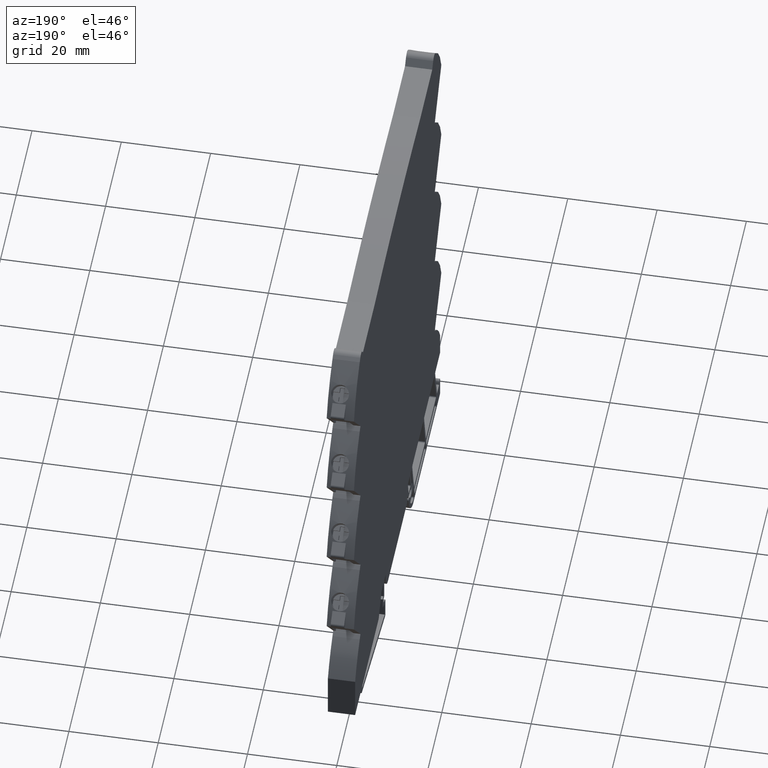
[diagram: clean part render]
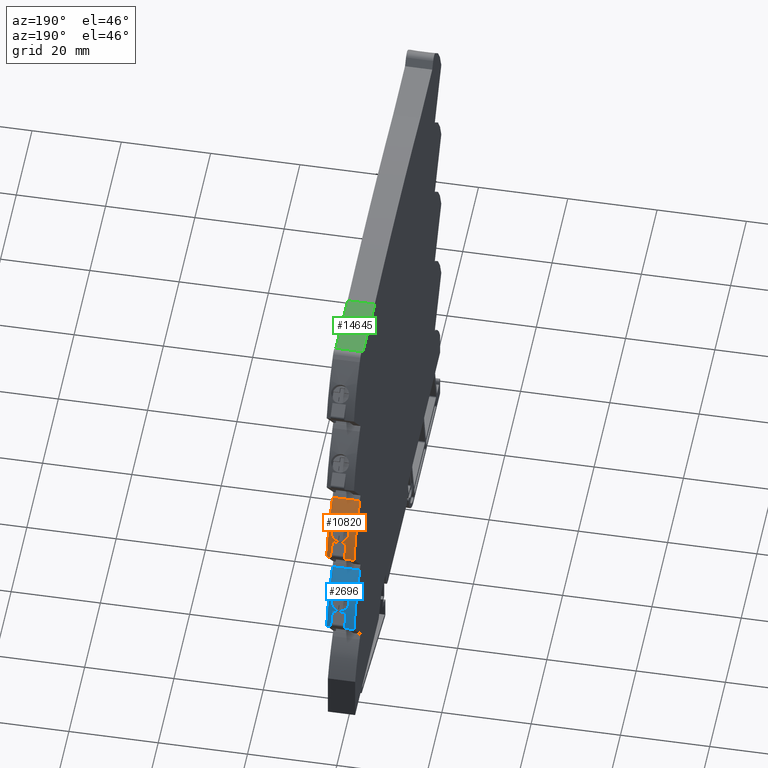
[diagram: same view with three faces highlighted in distinct colors, each labeled with its STEP entity id]
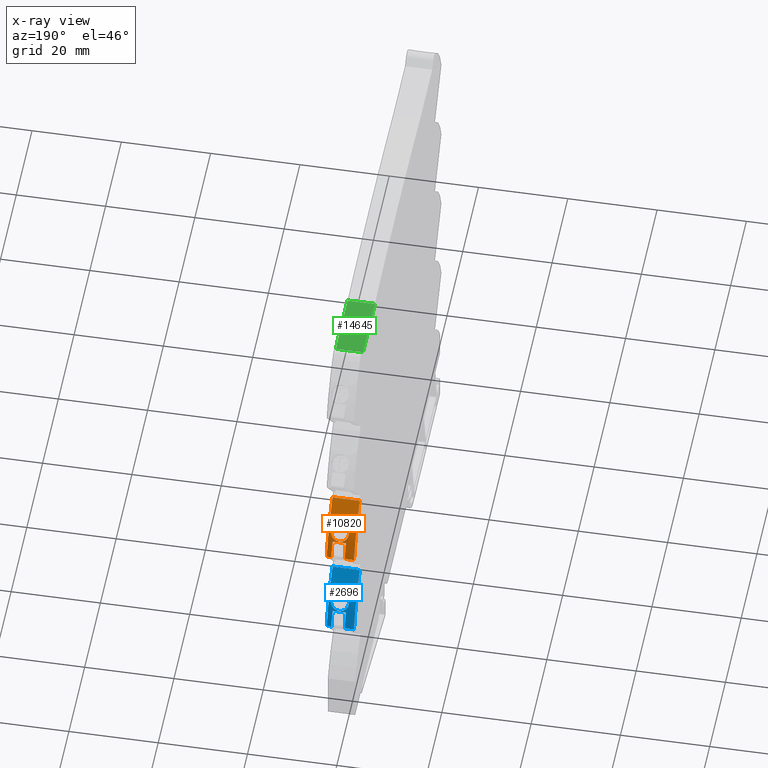
[diagram: x-ray of the same camera — body ghosted, the three highlighted faces saturated]
A machine part, auxiliary view with three faces highlighted in distinct colors.
The next image is the same camera in x-ray (body ghosted, the three faces saturated) — at least one of them is partly hidden behind the body in this view.
Their STEP definitions:

[orange] entity #10820 — the highlighted cylindrical surface (partial cylindrical patch) has radius 23.3063 mm, axis along (1, 0, 0).
#80 = CARTESIAN_POINT ( 'NONE',  ( 0.09803723854930621040, 2.082328412321664768, -1.908735431680129269 ) ) ;
#156 = CARTESIAN_POINT ( 'NONE',  ( 0.01968503937007873988, 2.041681786484861760, -1.849130077443395415 ) ) ;
#248 = EDGE_CURVE ( 'NONE', #2458, #2532, #4915, .T. ) ;
#299 = CARTESIAN_POINT ( 'NONE',  ( 0.09621604297857187793, 2.076767297206822072, -1.899955916970420322 ) ) ;
#388 = CARTESIAN_POINT ( 'NONE',  ( 0.03039502177605702890, 2.042020614591699701, -1.849586628273309996 ) ) ;
#572 = DIRECTION ( 'NONE',  ( -1.000000000000000000, -0.000000000000000000, -0.000000000000000000 ) ) ;
#606 = EDGE_CURVE ( 'NONE', #2914, #5800, #8027, .T. ) ;
#730 = CARTESIAN_POINT ( 'NONE',  ( -0.04878404843116903450, 2.108387055917562147, -1.953124501534956980 ) ) ;
#875 = AXIS2_PLACEMENT_3D ( 'NONE', #4143, #10272, #5668 ) ;
#891 = CARTESIAN_POINT ( 'NONE',  ( -0.02068331536314960487, 2.048330768449505346, -1.858212275688087223 ) ) ;
#953 = CARTESIAN_POINT ( 'NONE',  ( -0.05499901890064513854, 2.101196107611918773, -1.940290379915435626 ) ) ;
#987 = CARTESIAN_POINT ( 'NONE',  ( -1.239618836456299888, 2.185039370078739829, -2.137650433880518008 ) ) ;
#1267 = EDGE_CURVE ( 'NONE', #2532, #2458, #2503, .T. ) ;
#1311 = CARTESIAN_POINT ( 'NONE',  ( 0.1200787401574804764, 1.304396714720946315, -2.395341459822921237 ) ) ;
#1320 = CARTESIAN_POINT ( 'NONE',  ( -1.239618836456299888, 2.130467922716013707, -1.995913730930141128 ) ) ;
#1460 = ORIENTED_EDGE ( 'NONE', *, *, #12319, .T. ) ;
#1462 = CARTESIAN_POINT ( 'NONE',  ( 0.04074549341334526148, 2.043322983108333712, -1.851351272680382687 ) ) ;
#1484 = DIRECTION ( 'NONE',  ( 0.000000000000000000, 0.000000000000000000, -1.000000000000000000 ) ) ;
#1894 = CARTESIAN_POINT ( 'NONE',  ( -0.01609483467254451544, 2.046798652361732085, -1.856101189033609211 ) ) ;
#1940 = CARTESIAN_POINT ( 'NONE',  ( -1.239618836456299888, 1.894199848361314498, -1.692441456383686482 ) ) ;
#1960 = CARTESIAN_POINT ( 'NONE',  ( 0.01433197515524629352, 2.041681786484861760, -1.849130077443395415 ) ) ;
#2022 = FACE_BOUND ( 'NONE', #7810, .T. ) ;
#2036 = CARTESIAN_POINT ( 'NONE',  ( -0.001314004468406982816, 2.126836920362605188, -1.988488175252575152 ) ) ;
#2116 = CARTESIAN_POINT ( 'NONE',  ( -0.04010950442700071672, 2.114667762814291141, -1.964745825853058125 ) ) ;
#2248 = DIRECTION ( 'NONE',  ( 0.000000000000000000, -5.359070332273344552E-15, -1.000000000000000000 ) ) ;
#2283 = VERTEX_POINT ( 'NONE', #4909 ) ;
#2458 = VERTEX_POINT ( 'NONE', #10327 ) ;
#2471 = CARTESIAN_POINT ( 'NONE',  ( 0.09847349066399949113, 2.085160310300060882, -1.913291256853001387 ) ) ;
#2503 = B_SPLINE_CURVE_WITH_KNOTS ( 'NONE', 3,
 ( #7988, #1960, #12483, #12552, #5732, #1894, #891, #6824, #9138, #4358, #4427, #10474, #6601, #5592, #11545, #3262, #9071, #12706, #953, #9302, #730, #3189, #2116, #11607, #6752, #7901, #2036, #12775, #8062, #5654 ),
 .UNSPECIFIED., .F., .F.,
 ( 4, 2, 2, 2, 2, 2, 2, 2, 2, 2, 2, 2, 2, 2, 4 ),
 ( 1.084202172485504434E-19, 0.0004020662412857308929, 0.0008041324825714616775, 0.001206198723857192408, 0.001608264965142923355, 0.002412397447714375708, 0.002814463689000096247, 0.003216529930285816786, 0.003618596171571538192, 0.004020662412857259164, 0.004422728654142980137, 0.004824794895428700242, 0.005628927378000135248, 0.006030993619285854486, 0.006433059860571573724 ),
 .UNSPECIFIED. ) ;
#2532 = VERTEX_POINT ( 'NONE', #5522 ) ;
#2558 = CARTESIAN_POINT ( 'NONE',  ( 0.08873136419199574576, 2.065873749955929650, -1.883375658276704945 ) ) ;
#2634 = CARTESIAN_POINT ( 'NONE',  ( 0.08000785079911081066, 2.058443650964702609, -1.872498617877029536 ) ) ;
#2643 = CARTESIAN_POINT ( 'NONE',  ( 0.07874015748031501505, 2.130467922716013707, -1.995913730930140906 ) ) ;
#2799 = AXIS2_PLACEMENT_3D ( 'NONE', #7972, #3180, #3337 ) ;
#2914 = VERTEX_POINT ( 'NONE', #4868 ) ;
#3101 = LINE ( 'NONE', #1940, #6230 ) ;
#3139 = CARTESIAN_POINT ( 'NONE',  ( -0.1200787401574802127, 2.185039370078740273, -2.137650433880518008 ) ) ;
#3180 = DIRECTION ( 'NONE',  ( 1.000000000000000000, 0.000000000000000000, 0.000000000000000000 ) ) ;
#3189 = CARTESIAN_POINT ( 'NONE',  ( -0.04326723449944583355, 2.112675830390298604, -1.961013037879710819 ) ) ;
#3242 = CARTESIAN_POINT ( 'NONE',  ( 0.04060016175931423915, 2.126848314559866449, -1.988511224036471514 ) ) ;
#3262 = CARTESIAN_POINT ( 'NONE',  ( -0.05899705133367526971, 2.090682864560671650, -1.922352718444066300 ) ) ;
#3337 = DIRECTION ( 'NONE',  ( 0.000000000000000000, 0.000000000000000000, -1.000000000000000000 ) ) ;
#3401 = CARTESIAN_POINT ( 'NONE',  ( 0.07945492284593101695, 2.114679479272712381, -1.964768238954259338 ) ) ;
#3700 = DIRECTION ( 'NONE',  ( 0.000000000000000000, -3.572713554848895842E-15, -1.000000000000000000 ) ) ;
#3865 = CARTESIAN_POINT ( 'NONE',  ( 0.02503806109594255980, 2.041681786484862648, -1.849130077443392972 ) ) ;
#4033 = AXIS2_PLACEMENT_3D ( 'NONE', #14171, #5813, #2248 ) ;
#4143 = CARTESIAN_POINT ( 'NONE',  ( -0.1200787401574803376, 1.304396714720946315, -2.395341459822921237 ) ) ;
#4323 = CIRCLE ( 'NONE', #875, 0.9175707881612592542 ) ;
#4326 = CIRCLE ( 'NONE', #12962, 0.9175707881612592542 ) ;
#4354 = CARTESIAN_POINT ( 'NONE',  ( -1.239618836456299888, 2.185039370078740273, -2.137650433880518008 ) ) ;
#4358 = CARTESIAN_POINT ( 'NONE',  ( -0.04417320033189122558, 2.060616177129368065, -1.875603120541033286 ) ) ;
#4427 = CARTESIAN_POINT ( 'NONE',  ( -0.04985890177432774489, 2.065838204291715829, -1.883246901046085719 ) ) ;
#4569 = CARTESIAN_POINT ( 'NONE',  ( 0.04570859317173747716, 2.126076317427806117, -1.986949804009208398 ) ) ;
#4681 = EDGE_CURVE ( 'NONE', #5890, #5959, #4323, .T. ) ;
#4751 = VECTOR ( 'NONE', #10457, 39.37007874015748143 ) ;
#4802 = CARTESIAN_POINT ( 'NONE',  ( 0.07273040664023681934, 2.053963362698192352, -1.866095524861859811 ) ) ;
#4868 = CARTESIAN_POINT ( 'NONE',  ( 0.1200787401574804764, 2.185039370078739829, -2.137650433880518008 ) ) ;
#4909 = CARTESIAN_POINT ( 'NONE',  ( 0.1200787401574804764, 1.894199848361301619, -1.692441456383675380 ) ) ;
#4915 = B_SPLINE_CURVE_WITH_KNOTS ( 'NONE', 3,
 ( #15161, #13833, #5711, #3242, #4569, #9287, #13999, #3401, #8118, #9525, #5022, #10990, #10897, #6032, #6170, #2471, #80, #299, #7402, #9752, #2558, #9826, #2634, #4802, #14377, #7333, #12060, #9665, #1462, #388, #3865, #156 ),
 .UNSPECIFIED., .F., .F.,
 ( 4, 2, 2, 2, 2, 2, 2, 2, 2, 2, 2, 2, 2, 2, 2, 4 ),
 ( 1.084202172485504434E-18, 0.0004019755251540714871, 0.0008039510503081418900, 0.001607902100616291369, 0.002009877625770368874, 0.002411853150924446812, 0.002813828676078524750, 0.003215804201232602688, 0.003617779726386681494, 0.004019755251540759432, 0.004421730776694837370, 0.004823706301848915308, 0.005225681827002994113, 0.005627657352157072052, 0.006029632877311150857, 0.006431608402465228795 ),
 .UNSPECIFIED. ) ;
#5022 = CARTESIAN_POINT ( 'NONE',  ( 0.09055446451088657034, 2.106039175172224720, -1.948877750296356126 ) ) ;
#5029 = ORIENTED_EDGE ( 'NONE', *, *, #8624, .T. ) ;
#5522 = CARTESIAN_POINT ( 'NONE',  ( 0.01968503937007873988, 2.041681786484861760, -1.849130077443395415 ) ) ;
#5592 = CARTESIAN_POINT ( 'NONE',  ( -0.05868107894269113112, 2.082387902055983897, -1.908830303976847720 ) ) ;
#5654 = CARTESIAN_POINT ( 'NONE',  ( 0.01968503937007875029, 2.128125888827889778, -1.991105886163244687 ) ) ;
#5668 = DIRECTION ( 'NONE',  ( 0.000000000000000000, 0.000000000000000000, -1.000000000000000000 ) ) ;
#5688 = DIRECTION ( 'NONE',  ( -1.000000000000000000, -0.000000000000000000, -0.000000000000000000 ) ) ;
#5711 = CARTESIAN_POINT ( 'NONE',  ( 0.03029161267056218812, 2.127865896563615689, -1.990574883407548068 ) ) ;
#5732 = CARTESIAN_POINT ( 'NONE',  ( -0.006392439550037033041, 2.044282015018290988, -1.852653290560283716 ) ) ;
#5800 = VERTEX_POINT ( 'NONE', #11968 ) ;
#5813 = DIRECTION ( 'NONE',  ( -1.000000000000000000, -0.000000000000000000, -0.000000000000000000 ) ) ;
#5890 = VERTEX_POINT ( 'NONE', #3139 ) ;
#5959 = VERTEX_POINT ( 'NONE', #11562 ) ;
#6032 = CARTESIAN_POINT ( 'NONE',  ( 0.09784099568881188258, 2.093361755794751922, -1.926836076903554851 ) ) ;
#6076 = CARTESIAN_POINT ( 'NONE',  ( -0.03937007874015750752, 2.130467922716013707, -1.995913730930141350 ) ) ;
#6170 = CARTESIAN_POINT ( 'NONE',  ( 0.09836824211244667160, 2.090671833921745826, -1.922334454282055294 ) ) ;
#6230 = VECTOR ( 'NONE', #11366, 39.37007874015748143 ) ;
#6601 = CARTESIAN_POINT ( 'NONE',  ( -0.05686313374939366838, 2.076803025439112105, -1.900011384523212277 ) ) ;
#6612 = ORIENTED_EDGE ( 'NONE', *, *, #9470, .T. ) ;
#6752 = CARTESIAN_POINT ( 'NONE',  ( -0.02082410467820915850, 2.123071772988719630, -1.980941354538108046 ) ) ;
#6824 = CARTESIAN_POINT ( 'NONE',  ( -0.02933792581451650019, 2.051919738085116407, -1.863218385443649039 ) ) ;
#6826 = ORIENTED_EDGE ( 'NONE', *, *, #248, .T. ) ;
#6882 = CYLINDRICAL_SURFACE ( 'NONE', #2799, 0.9175707881612592542 ) ;
#7270 = VERTEX_POINT ( 'NONE', #2643 ) ;
#7333 = CARTESIAN_POINT ( 'NONE',  ( 0.06015519260634843990, 2.048369262060721230, -1.858265703633345423 ) ) ;
#7402 = CARTESIAN_POINT ( 'NONE',  ( 0.09483616691424173739, 2.074009374020293617, -1.895684391636092148 ) ) ;
#7730 = VERTEX_POINT ( 'NONE', #6076 ) ;
#7735 = CARTESIAN_POINT ( 'NONE',  ( -0.03937007874015751446, 2.185039370078740273, -2.137650433880518008 ) ) ;
#7810 = EDGE_LOOP ( 'NONE', ( #11548, #6826 ) ) ;
#7901 = CARTESIAN_POINT ( 'NONE',  ( -0.006306735061313822888, 2.126083037682081400, -1.986963234771416120 ) ) ;
#7972 = CARTESIAN_POINT ( 'NONE',  ( -1.239618836456299888, 1.304396714720946315, -2.395341459822921237 ) ) ;
#7988 = CARTESIAN_POINT ( 'NONE',  ( 0.01968503937007873988, 2.041681786484861760, -1.849130077443395415 ) ) ;
#8027 = LINE ( 'NONE', #987, #8193 ) ;
#8062 = CARTESIAN_POINT ( 'NONE',  ( 0.01432697834123192182, 2.128125888827890222, -1.991105886163245353 ) ) ;
#8118 = CARTESIAN_POINT ( 'NONE',  ( 0.08266488005329700184, 2.112659675907661239, -1.960982545038683078 ) ) ;
#8193 = VECTOR ( 'NONE', #5688, 39.37007874015748143 ) ;
#8261 = ORIENTED_EDGE ( 'NONE', *, *, #4681, .T. ) ;
#8424 = EDGE_LOOP ( 'NONE', ( #6612, #10219, #8261, #5029, #15251, #14084, #1460, #11037 ) ) ;
#8580 = VERTEX_POINT ( 'NONE', #7735 ) ;
#8624 = EDGE_CURVE ( 'NONE', #5959, #2283, #3101, .T. ) ;
#8697 = CIRCLE ( 'NONE', #13927, 0.9175707881612592542 ) ;
#9071 = CARTESIAN_POINT ( 'NONE',  ( -0.05845379507781205131, 2.093426370282773341, -1.926945012485391073 ) ) ;
#9138 = CARTESIAN_POINT ( 'NONE',  ( -0.03337323827959006589, 2.053973334767973835, -1.866109980878949193 ) ) ;
#9287 = CARTESIAN_POINT ( 'NONE',  ( 0.06012073970926233579, 2.123087263754322773, -1.980972316143180256 ) ) ;
#9302 = CARTESIAN_POINT ( 'NONE',  ( -0.05115803216410425708, 2.106069513036965990, -1.948931914364321116 ) ) ;
#9359 = EDGE_CURVE ( 'NONE', #8580, #5890, #14726, .T. ) ;
#9470 = EDGE_CURVE ( 'NONE', #7730, #8580, #10713, .T. ) ;
#9525 = CARTESIAN_POINT ( 'NONE',  ( 0.08821984930602450037, 2.108330598236671349, -1.953021448728935905 ) ) ;
#9665 = CARTESIAN_POINT ( 'NONE',  ( 0.04576683244414975205, 2.044282217774685773, -1.852653534779491684 ) ) ;
#9752 = CARTESIAN_POINT ( 'NONE',  ( 0.09109468084244506936, 2.068553959622045024, -1.887380303622928190 ) ) ;
#9826 = CARTESIAN_POINT ( 'NONE',  ( 0.08319703965298450021, 2.060833785373574756, -1.875957964430942093 ) ) ;
#10066 = DIRECTION ( 'NONE',  ( 1.000000000000000000, 0.000000000000000000, 0.000000000000000000 ) ) ;
#10069 = EDGE_CURVE ( 'NONE', #2283, #2914, #8697, .T. ) ;
#10219 = ORIENTED_EDGE ( 'NONE', *, *, #9359, .T. ) ;
#10272 = DIRECTION ( 'NONE',  ( 1.000000000000000000, 0.000000000000000000, 0.000000000000000000 ) ) ;
#10327 = CARTESIAN_POINT ( 'NONE',  ( 0.01968503937007875029, 2.128125888827889778, -1.991105886163244687 ) ) ;
#10457 = DIRECTION ( 'NONE',  ( -1.000000000000000000, -0.000000000000000000, -0.000000000000000000 ) ) ;
#10474 = CARTESIAN_POINT ( 'NONE',  ( -0.05545066862829075433, 2.073984599342777901, -1.895646456745445407 ) ) ;
#10713 = CIRCLE ( 'NONE', #4033, 0.9175707881612592542 ) ;
#10820 = ADVANCED_FACE ( 'NONE', ( #2022, #12472 ), #6882, .T. ) ;
#10897 = CARTESIAN_POINT ( 'NONE',  ( 0.09585132541870750034, 2.098615159202446456, -1.935797999085636656 ) ) ;
#10990 = CARTESIAN_POINT ( 'NONE',  ( 0.09436892079027431324, 2.101193211340179889, -1.940285615669793629 ) ) ;
#11037 = ORIENTED_EDGE ( 'NONE', *, *, #14358, .T. ) ;
#11366 = DIRECTION ( 'NONE',  ( 1.000000000000000000, 0.000000000000000000, 0.000000000000000000 ) ) ;
#11545 = CARTESIAN_POINT ( 'NONE',  ( -0.05910422590308157115, 2.085164755858979202, -1.913298386189027811 ) ) ;
#11548 = ORIENTED_EDGE ( 'NONE', *, *, #1267, .T. ) ;
#11562 = CARTESIAN_POINT ( 'NONE',  ( -0.1200787401574799351, 1.894199848361314054, -1.692441456383686038 ) ) ;
#11607 = CARTESIAN_POINT ( 'NONE',  ( -0.02934366716504463110, 2.120186637876030122, -1.975239766292906429 ) ) ;
#11968 = CARTESIAN_POINT ( 'NONE',  ( 0.07874015748031502893, 2.185039370078739829, -2.137650433880518008 ) ) ;
#12060 = CARTESIAN_POINT ( 'NONE',  ( 0.05549918779461118779, 2.046808462459453359, -1.856114662976840135 ) ) ;
#12319 = EDGE_CURVE ( 'NONE', #5800, #7270, #4326, .T. ) ;
#12472 = FACE_OUTER_BOUND ( 'NONE', #8424, .T. ) ;
#12483 = CARTESIAN_POINT ( 'NONE',  ( 0.009073888313316126955, 2.042012768652751387, -1.849576042937296272 ) ) ;
#12552 = CARTESIAN_POINT ( 'NONE',  ( -0.001260380042491059029, 2.043304012960920346, -1.851325524492005936 ) ) ;
#12706 = CARTESIAN_POINT ( 'NONE',  ( -0.05645340270005341082, 2.098668827025951700, -1.935890873960871117 ) ) ;
#12775 = CARTESIAN_POINT ( 'NONE',  ( 0.008979930066918651727, 2.127859225306985458, -1.990561296424429694 ) ) ;
#12962 = AXIS2_PLACEMENT_3D ( 'NONE', #13605, #10066, #1484 ) ;
#13605 = CARTESIAN_POINT ( 'NONE',  ( 0.07874015748031502893, 1.304396714720946315, -2.395341459822921237 ) ) ;
#13833 = CARTESIAN_POINT ( 'NONE',  ( 0.02503985687551122871, 2.128125888827890666, -1.991105886163245131 ) ) ;
#13927 = AXIS2_PLACEMENT_3D ( 'NONE', #1311, #14301, #3700 ) ;
#13999 = CARTESIAN_POINT ( 'NONE',  ( 0.06880303296122800005, 2.120142711840090843, -1.975155973925407871 ) ) ;
#14084 = ORIENTED_EDGE ( 'NONE', *, *, #606, .T. ) ;
#14170 = VECTOR ( 'NONE', #572, 39.37007874015748143 ) ;
#14171 = CARTESIAN_POINT ( 'NONE',  ( -0.03937007874015751446, 1.304396714720946315, -2.395341459822921237 ) ) ;
#14240 = LINE ( 'NONE', #1320, #4751 ) ;
#14301 = DIRECTION ( 'NONE',  ( -1.000000000000000000, -0.000000000000000000, -0.000000000000000000 ) ) ;
#14358 = EDGE_CURVE ( 'NONE', #7270, #7730, #14240, .T. ) ;
#14377 = CARTESIAN_POINT ( 'NONE',  ( 0.06873726164424985574, 2.051935648996881856, -1.863240848262064375 ) ) ;
#14726 = LINE ( 'NONE', #4354, #14170 ) ;
#15161 = CARTESIAN_POINT ( 'NONE',  ( 0.01968503937007875029, 2.128125888827889778, -1.991105886163244687 ) ) ;
#15251 = ORIENTED_EDGE ( 'NONE', *, *, #10069, .T. ) ;

[blue] entity #2696 — the highlighted cylindrical surface (partial cylindrical patch) has radius 23.3063 mm, axis along (1, 0, 0).
#293 = CARTESIAN_POINT ( 'NONE',  ( 0.04060016175931428078, 2.126848314559867337, -2.854652956319935875 ) ) ;
#687 = CARTESIAN_POINT ( 'NONE',  ( 0.08266488005329719613, 2.112659675907660795, -2.827124277322146995 ) ) ;
#801 = CARTESIAN_POINT ( 'NONE',  ( 0.1200787401574802127, 1.894199848361309391, -2.558583188667146846 ) ) ;
#838 = CARTESIAN_POINT ( 'NONE',  ( -1.239618836456299666, 2.130467922716014595, -2.862055463213606377 ) ) ;
#876 = CARTESIAN_POINT ( 'NONE',  ( -0.04326723449944591682, 2.112675830390298604, -2.827154770163175623 ) ) ;
#918 = CARTESIAN_POINT ( 'NONE',  ( 0.08000785079911075515, 2.058443650964703497, -2.738640350160494119 ) ) ;
#939 = CARTESIAN_POINT ( 'NONE',  ( 0.01433197515524628311, 2.041681786484861760, -2.715271809726859775 ) ) ;
#1218 = CARTESIAN_POINT ( 'NONE',  ( -0.03937007874015751446, 1.304396714720946315, -3.261483192106386042 ) ) ;
#1520 = DIRECTION ( 'NONE',  ( -1.000000000000000000, -0.000000000000000000, -0.000000000000000000 ) ) ;
#1619 = DIRECTION ( 'NONE',  ( 0.000000000000000000, 0.000000000000000000, -1.000000000000000000 ) ) ;
#1706 = EDGE_CURVE ( 'NONE', #5075, #14094, #6241, .T. ) ;
#1754 = CARTESIAN_POINT ( 'NONE',  ( 0.03029161267056224363, 2.127865896563616133, -2.856716615691012429 ) ) ;
#1761 = CARTESIAN_POINT ( 'NONE',  ( 0.07874015748031502893, 2.185039370078740717, -3.003792166163982813 ) ) ;
#1773 = FACE_BOUND ( 'NONE', #8838, .T. ) ;
#1850 = CARTESIAN_POINT ( 'NONE',  ( 0.06880303296122811108, 2.120142711840090843, -2.841297706208872675 ) ) ;
#1946 = CARTESIAN_POINT ( 'NONE',  ( -0.03337323827959028794, 2.053973334767974723, -2.732251713162414664 ) ) ;
#2008 = EDGE_CURVE ( 'NONE', #14094, #6343, #7857, .T. ) ;
#2018 = CARTESIAN_POINT ( 'NONE',  ( -0.001260380042491022383, 2.043304012960920346, -2.717467256775470297 ) ) ;
#2055 = CARTESIAN_POINT ( 'NONE',  ( -0.1200787401574803376, 1.304396714720946315, -3.261483192106386042 ) ) ;
#2103 = CARTESIAN_POINT ( 'NONE',  ( -0.04417320033189141987, 2.060616177129368065, -2.741744852824497425 ) ) ;
#2146 = CARTESIAN_POINT ( 'NONE',  ( 0.09109468084244498609, 2.068553959622045912, -2.753522035906393217 ) ) ;
#2305 = DIRECTION ( 'NONE',  ( 0.000000000000000000, -1.786356777424446817E-14, -1.000000000000000000 ) ) ;
#2546 = VERTEX_POINT ( 'NONE', #3350 ) ;
#2678 = LINE ( 'NONE', #7377, #7923 ) ;
#2696 = ADVANCED_FACE ( 'NONE', ( #1773, #6498 ), #4176, .T. ) ;
#3027 = CARTESIAN_POINT ( 'NONE',  ( 0.008979930066918712442, 2.127859225306985902, -2.856703028707894276 ) ) ;
#3177 = CARTESIAN_POINT ( 'NONE',  ( -0.006392439550036891661, 2.044282015018291432, -2.718795022843748299 ) ) ;
#3215 = CARTESIAN_POINT ( 'NONE',  ( 0.09436892079027432712, 2.101193211340180778, -2.806427347953257101 ) ) ;
#3311 = DIRECTION ( 'NONE',  ( -1.000000000000000000, -0.000000000000000000, -0.000000000000000000 ) ) ;
#3350 = CARTESIAN_POINT ( 'NONE',  ( 0.07874015748031501505, 2.130467922716015039, -2.862055463213606377 ) ) ;
#3850 = ORIENTED_EDGE ( 'NONE', *, *, #4744, .T. ) ;
#4176 = CYLINDRICAL_SURFACE ( 'NONE', #9951, 0.9175707881612598094 ) ;
#4226 = CARTESIAN_POINT ( 'NONE',  ( 0.01968503937007873988, 2.041681786484861760, -2.715271809726859775 ) ) ;
#4228 = VECTOR ( 'NONE', #14081, 39.37007874015748143 ) ;
#4451 = CARTESIAN_POINT ( 'NONE',  ( 0.07273040664023673607, 2.053963362698191908, -2.732237257145324172 ) ) ;
#4591 = VERTEX_POINT ( 'NONE', #13572 ) ;
#4663 = CARTESIAN_POINT ( 'NONE',  ( 0.1200787401574802127, 2.185039370078740717, -3.003792166163982813 ) ) ;
#4744 = EDGE_CURVE ( 'NONE', #6343, #4591, #14941, .T. ) ;
#4768 = AXIS2_PLACEMENT_3D ( 'NONE', #1218, #3311, #2305 ) ;
#5075 = VERTEX_POINT ( 'NONE', #13557 ) ;
#5120 = VERTEX_POINT ( 'NONE', #801 ) ;
#5239 = CARTESIAN_POINT ( 'NONE',  ( 0.01968503937007875029, 2.128125888827889778, -2.857247618446709048 ) ) ;
#5323 = EDGE_LOOP ( 'NONE', ( #8795, #11551, #3850, #5851, #13205, #10784, #12198, #5368 ) ) ;
#5368 = ORIENTED_EDGE ( 'NONE', *, *, #10528, .T. ) ;
#5395 = CARTESIAN_POINT ( 'NONE',  ( 0.09784099568881192421, 2.093361755794752810, -2.792977809187019211 ) ) ;
#5463 = CARTESIAN_POINT ( 'NONE',  ( 0.09847349066399947726, 2.085160310300061326, -2.779432989136466858 ) ) ;
#5477 = VERTEX_POINT ( 'NONE', #1761 ) ;
#5579 = CARTESIAN_POINT ( 'NONE',  ( -0.04985890177432770326, 2.065838204291715829, -2.749388633329549858 ) ) ;
#5619 = CARTESIAN_POINT ( 'NONE',  ( 0.04074549341334518515, 2.043322983108335045, -2.717493004963848158 ) ) ;
#5725 = LINE ( 'NONE', #12701, #4228 ) ;
#5744 = AXIS2_PLACEMENT_3D ( 'NONE', #12278, #7483, #1619 ) ;
#5851 = ORIENTED_EDGE ( 'NONE', *, *, #13159, .T. ) ;
#6235 = VERTEX_POINT ( 'NONE', #7676 ) ;
#6241 = CIRCLE ( 'NONE', #4768, 0.9175707881612598094 ) ;
#6246 = CIRCLE ( 'NONE', #5744, 0.9175707881612598094 ) ;
#6343 = VERTEX_POINT ( 'NONE', #7530 ) ;
#6498 = FACE_OUTER_BOUND ( 'NONE', #5323, .T. ) ;
#6563 = CARTESIAN_POINT ( 'NONE',  ( 0.08821984930602473629, 2.108330598236671793, -2.819163181012402042 ) ) ;
#6655 = CARTESIAN_POINT ( 'NONE',  ( -0.05899705133367526277, 2.090682864560671650, -2.788494450727530882 ) ) ;
#6677 = ORIENTED_EDGE ( 'NONE', *, *, #14282, .T. ) ;
#6783 = CARTESIAN_POINT ( 'NONE',  ( 0.09483616691424170964, 2.074009374020295393, -2.761826123919557396 ) ) ;
#6810 = CARTESIAN_POINT ( 'NONE',  ( -0.05868107894269107561, 2.082387902055983897, -2.774972036260312969 ) ) ;
#6853 = CARTESIAN_POINT ( 'NONE',  ( 0.06015519260634870358, 2.048369262060722562, -2.724407435916810893 ) ) ;
#6876 = CARTESIAN_POINT ( 'NONE',  ( -0.02068331536314963956, 2.048330768449505790, -2.724354007971551361 ) ) ;
#6949 = VECTOR ( 'NONE', #12573, 39.37007874015748143 ) ;
#7322 = CARTESIAN_POINT ( 'NONE',  ( 0.01968503937007873988, 2.041681786484861760, -2.715271809726859775 ) ) ;
#7377 = CARTESIAN_POINT ( 'NONE',  ( -1.239618836456299666, 1.894199848361314942, -2.558583188667150843 ) ) ;
#7483 = DIRECTION ( 'NONE',  ( 1.000000000000000000, 0.000000000000000000, 0.000000000000000000 ) ) ;
#7530 = CARTESIAN_POINT ( 'NONE',  ( -0.1200787401574803376, 2.185039370078740717, -3.003792166163982813 ) ) ;
#7628 = LINE ( 'NONE', #838, #13394 ) ;
#7676 = CARTESIAN_POINT ( 'NONE',  ( 0.01968503937007875029, 2.128125888827889778, -2.857247618446709048 ) ) ;
#7713 = CARTESIAN_POINT ( 'NONE',  ( 0.06873726164425007779, 2.051935648996881856, -2.729382580545529180 ) ) ;
#7857 = LINE ( 'NONE', #9027, #6949 ) ;
#7889 = CARTESIAN_POINT ( 'NONE',  ( -0.05686313374939355042, 2.076803025439112105, -2.766153116806676415 ) ) ;
#7923 = VECTOR ( 'NONE', #10959, 39.37007874015748143 ) ;
#7934 = CARTESIAN_POINT ( 'NONE',  ( 0.06012073970926219008, 2.123087263754322773, -2.847114048426644839 ) ) ;
#8010 = VERTEX_POINT ( 'NONE', #4663 ) ;
#8134 = CARTESIAN_POINT ( 'NONE',  ( -0.03937007874015751446, 2.185039370078740717, -3.003792166163982813 ) ) ;
#8795 = ORIENTED_EDGE ( 'NONE', *, *, #1706, .T. ) ;
#8838 = EDGE_LOOP ( 'NONE', ( #6677, #10620 ) ) ;
#8884 = CARTESIAN_POINT ( 'NONE',  ( -1.239618836456299666, 1.304396714720946315, -3.261483192106386042 ) ) ;
#8896 = CARTESIAN_POINT ( 'NONE',  ( -0.02934366716504455477, 2.120186637876031011, -2.841381498576371900 ) ) ;
#8973 = EDGE_CURVE ( 'NONE', #5477, #2546, #6246, .T. ) ;
#9027 = CARTESIAN_POINT ( 'NONE',  ( -1.239618836456299666, 2.185039370078740717, -3.003792166163982813 ) ) ;
#9060 = CARTESIAN_POINT ( 'NONE',  ( -0.04010950442700068203, 2.114667762814292029, -2.830887558136522930 ) ) ;
#9951 = AXIS2_PLACEMENT_3D ( 'NONE', #8884, #12454, #14060 ) ;
#10081 = CARTESIAN_POINT ( 'NONE',  ( 0.009073888313316180732, 2.042012768652751831, -2.715717775220761965 ) ) ;
#10238 = CARTESIAN_POINT ( 'NONE',  ( -0.006306735061313781254, 2.126083037682080956, -2.853104967054880259 ) ) ;
#10324 = VERTEX_POINT ( 'NONE', #7322 ) ;
#10353 = CARTESIAN_POINT ( 'NONE',  ( 0.05549918779461122942, 2.046808462459453359, -2.722256395260306494 ) ) ;
#10374 = EDGE_CURVE ( 'NONE', #5120, #8010, #12660, .T. ) ;
#10375 = CARTESIAN_POINT ( 'NONE',  ( 0.01968503937007873988, 2.041681786484861760, -2.715271809726859775 ) ) ;
#10490 = DIRECTION ( 'NONE',  ( 0.000000000000000000, 0.000000000000000000, -1.000000000000000000 ) ) ;
#10528 = EDGE_CURVE ( 'NONE', #2546, #5075, #7628, .T. ) ;
#10620 = ORIENTED_EDGE ( 'NONE', *, *, #12830, .T. ) ;
#10699 = AXIS2_PLACEMENT_3D ( 'NONE', #12112, #1520, #10882 ) ;
#10784 = ORIENTED_EDGE ( 'NONE', *, *, #13745, .T. ) ;
#10882 = DIRECTION ( 'NONE',  ( 0.000000000000000000, -1.786356777424446738E-15, -1.000000000000000000 ) ) ;
#10900 = B_SPLINE_CURVE_WITH_KNOTS ( 'NONE', 3,
 ( #5239, #12345, #1754, #293, #14915, #7934, #1850, #11573, #687, #6563, #11509, #3215, #14825, #5395, #14985, #5463, #12735, #12580, #6783, #2146, #12657, #11425, #918, #4451, #7713, #6853, #10353, #12436, #5619, #13675, #13587, #4226 ),
 .UNSPECIFIED., .F., .F.,
 ( 4, 2, 2, 2, 2, 2, 2, 2, 2, 2, 2, 2, 2, 2, 2, 4 ),
 ( 2.059984127722458425E-18, 0.0004019755251540915448, 0.0008039510503081814634, 0.001607902100616361192, 0.002009877625770433926, 0.002411853150924505793, 0.002813828676078578093, 0.003215804201232650393, 0.003617779726386723561, 0.004019755251540795861, 0.004421730776694867728, 0.004823706301848939594, 0.005225681827003012328, 0.005627657352157085062, 0.006029632877311156929, 0.006431608402465229662 ),
 .UNSPECIFIED. ) ;
#10959 = DIRECTION ( 'NONE',  ( 1.000000000000000000, 0.000000000000000000, 0.000000000000000000 ) ) ;
#11371 = CARTESIAN_POINT ( 'NONE',  ( -0.05910422590308157809, 2.085164755858978758, -2.779440118472492838 ) ) ;
#11425 = CARTESIAN_POINT ( 'NONE',  ( 0.08319703965298450021, 2.060833785373575200, -2.742099696714407120 ) ) ;
#11464 = CARTESIAN_POINT ( 'NONE',  ( -0.05545066862829069188, 2.073984599342778345, -2.761788189028909990 ) ) ;
#11509 = CARTESIAN_POINT ( 'NONE',  ( 0.09055446451088662585, 2.106039175172224720, -2.815019482579820931 ) ) ;
#11551 = ORIENTED_EDGE ( 'NONE', *, *, #2008, .T. ) ;
#11573 = CARTESIAN_POINT ( 'NONE',  ( 0.07945492284593115573, 2.114679479272712825, -2.830909971237725031 ) ) ;
#12112 = CARTESIAN_POINT ( 'NONE',  ( 0.1200787401574802127, 1.304396714720946315, -3.261483192106386042 ) ) ;
#12198 = ORIENTED_EDGE ( 'NONE', *, *, #8973, .T. ) ;
#12278 = CARTESIAN_POINT ( 'NONE',  ( 0.07874015748031502893, 1.304396714720946315, -3.261483192106386042 ) ) ;
#12340 = DIRECTION ( 'NONE',  ( -1.000000000000000000, -0.000000000000000000, -0.000000000000000000 ) ) ;
#12345 = CARTESIAN_POINT ( 'NONE',  ( 0.02503985687551122871, 2.128125888827890666, -2.857247618446711268 ) ) ;
#12436 = CARTESIAN_POINT ( 'NONE',  ( 0.04576683244414975898, 2.044282217774686661, -2.718795267062957155 ) ) ;
#12454 = DIRECTION ( 'NONE',  ( 1.000000000000000000, 0.000000000000000000, 0.000000000000000000 ) ) ;
#12468 = CARTESIAN_POINT ( 'NONE',  ( 0.01968503937007875029, 2.128125888827889778, -2.857247618446709048 ) ) ;
#12538 = CARTESIAN_POINT ( 'NONE',  ( -0.05115803216410437504, 2.106069513036966434, -2.815073646647785033 ) ) ;
#12573 = DIRECTION ( 'NONE',  ( -1.000000000000000000, -0.000000000000000000, -0.000000000000000000 ) ) ;
#12580 = CARTESIAN_POINT ( 'NONE',  ( 0.09621604297857194732, 2.076767297206822960, -2.766097649253884683 ) ) ;
#12606 = CARTESIAN_POINT ( 'NONE',  ( -0.001314004468406922534, 2.126836920362604300, -2.854629907536039291 ) ) ;
#12657 = CARTESIAN_POINT ( 'NONE',  ( 0.08873136419199578739, 2.065873749955930538, -2.749517390560169972 ) ) ;
#12660 = CIRCLE ( 'NONE', #10699, 0.9175707881612598094 ) ;
#12689 = CARTESIAN_POINT ( 'NONE',  ( -0.01609483467254438707, 2.046798652361733417, -2.722242921317075126 ) ) ;
#12701 = CARTESIAN_POINT ( 'NONE',  ( -1.239618836456299666, 2.185039370078740717, -3.003792166163982813 ) ) ;
#12735 = CARTESIAN_POINT ( 'NONE',  ( 0.09803723854930626591, 2.082328412321665212, -2.774877163963594295 ) ) ;
#12761 = CARTESIAN_POINT ( 'NONE',  ( -0.04878404843116909001, 2.108387055917561703, -2.819266233818420009 ) ) ;
#12830 = EDGE_CURVE ( 'NONE', #6235, #10324, #10900, .T. ) ;
#13159 = EDGE_CURVE ( 'NONE', #4591, #5120, #2678, .T. ) ;
#13205 = ORIENTED_EDGE ( 'NONE', *, *, #10374, .T. ) ;
#13394 = VECTOR ( 'NONE', #12340, 39.37007874015748143 ) ;
#13557 = CARTESIAN_POINT ( 'NONE',  ( -0.03937007874015743814, 2.130467922716015039, -2.862055463213606377 ) ) ;
#13572 = CARTESIAN_POINT ( 'NONE',  ( -0.1200787401574803376, 1.894199848361314276, -2.558583188667150843 ) ) ;
#13587 = CARTESIAN_POINT ( 'NONE',  ( 0.02503806109594254939, 2.041681786484863093, -2.715271809726857999 ) ) ;
#13618 = CARTESIAN_POINT ( 'NONE',  ( -0.02082410467820918279, 2.123071772988720074, -2.847083086821572628 ) ) ;
#13675 = CARTESIAN_POINT ( 'NONE',  ( 0.03039502177605693523, 2.042020614591700145, -2.715728360556774579 ) ) ;
#13701 = CARTESIAN_POINT ( 'NONE',  ( -0.05845379507781202355, 2.093426370282773341, -2.793086744768855212 ) ) ;
#13745 = EDGE_CURVE ( 'NONE', #8010, #5477, #5725, .T. ) ;
#13870 = DIRECTION ( 'NONE',  ( 1.000000000000000000, 0.000000000000000000, 0.000000000000000000 ) ) ;
#13928 = CARTESIAN_POINT ( 'NONE',  ( -0.05645340270005336225, 2.098668827025952144, -2.802032606244336588 ) ) ;
#14060 = DIRECTION ( 'NONE',  ( 0.000000000000000000, 0.000000000000000000, -1.000000000000000000 ) ) ;
#14081 = DIRECTION ( 'NONE',  ( -1.000000000000000000, -0.000000000000000000, -0.000000000000000000 ) ) ;
#14094 = VERTEX_POINT ( 'NONE', #8134 ) ;
#14282 = EDGE_CURVE ( 'NONE', #10324, #6235, #14760, .T. ) ;
#14760 = B_SPLINE_CURVE_WITH_KNOTS ( 'NONE', 3,
 ( #10375, #939, #10081, #2018, #3177, #12689, #6876, #15074, #1946, #2103, #5579, #11464, #7889, #6810, #11371, #6655, #13701, #13928, #14787, #12538, #12761, #876, #9060, #8896, #13618, #10238, #12606, #3027, #14856, #12468 ),
 .UNSPECIFIED., .F., .F.,
 ( 4, 2, 2, 2, 2, 2, 2, 2, 2, 2, 2, 2, 2, 2, 4 ),
 ( 1.084202172485504434E-19, 0.0004020662412857310556, 0.0008041324825714620027, 0.001206198723857192841, 0.001608264965142923789, 0.002412397447714352289, 0.002814463689000077165, 0.003216529930285802041, 0.003618596171571527350, 0.004020662412857252226, 0.004422728654142977535, 0.004824794895428702844, 0.005628927378000145657, 0.006030993619285864894, 0.006433059860571584132 ),
 .UNSPECIFIED. ) ;
#14787 = CARTESIAN_POINT ( 'NONE',  ( -0.05499901890064525650, 2.101196107611919217, -2.806432112198899542 ) ) ;
#14825 = CARTESIAN_POINT ( 'NONE',  ( 0.09585132541870755585, 2.098615159202447344, -2.801939731369101239 ) ) ;
#14856 = CARTESIAN_POINT ( 'NONE',  ( 0.01432697834123191141, 2.128125888827889778, -2.857247618446709048 ) ) ;
#14915 = CARTESIAN_POINT ( 'NONE',  ( 0.04570859317173728981, 2.126076317427806117, -2.853091536292672092 ) ) ;
#14941 = CIRCLE ( 'NONE', #15174, 0.9175707881612598094 ) ;
#14985 = CARTESIAN_POINT ( 'NONE',  ( 0.09836824211244665772, 2.090671833921746270, -2.788476186565518766 ) ) ;
#15074 = CARTESIAN_POINT ( 'NONE',  ( -0.02933792581451654530, 2.051919738085117739, -2.729360117727112733 ) ) ;
#15174 = AXIS2_PLACEMENT_3D ( 'NONE', #2055, #13870, #10490 ) ;

[green] entity #14645 — the highlighted planar face has unit normal (0, 0, -1).
#327 = ORIENTED_EDGE ( 'NONE', *, *, #12771, .F. ) ;
#451 = DIRECTION ( 'NONE',  ( -0.000000000000000000, -1.000000000000000000, -0.000000000000000000 ) ) ;
#1374 = ORIENTED_EDGE ( 'NONE', *, *, #10405, .T. ) ;
#1932 = DIRECTION ( 'NONE',  ( 0.000000000000000000, 5.940250236135136720E-17, -1.000000000000000000 ) ) ;
#2698 = CARTESIAN_POINT ( 'NONE',  ( -0.1200787401574803098, 1.141732283464590436, 1.126650074797974164E-15 ) ) ;
#2771 = LINE ( 'NONE', #13216, #10471 ) ;
#3237 = EDGE_CURVE ( 'NONE', #7197, #8862, #12310, .T. ) ;
#3509 = AXIS2_PLACEMENT_3D ( 'NONE', #5476, #1932, #11288 ) ;
#4325 = CARTESIAN_POINT ( 'NONE',  ( -0.1200787401574801849, 1.732283464566929165, 2.844652013767473090E-16 ) ) ;
#5297 = EDGE_LOOP ( 'NONE', ( #6278, #1374, #7355, #327 ) ) ;
#5390 = DIRECTION ( 'NONE',  ( -0.000000000000000000, -1.000000000000000000, -5.940250236135136720E-17 ) ) ;
#5476 = CARTESIAN_POINT ( 'NONE',  ( 0.1200787401574803098, 1.141732283464567121, 2.493849834468154726E-16 ) ) ;
#5480 = VERTEX_POINT ( 'NONE', #4325 ) ;
#5767 = CARTESIAN_POINT ( 'NONE',  ( 0.1200787401574803098, 1.732283464566929165, 2.844652013767473090E-16 ) ) ;
#6278 = ORIENTED_EDGE ( 'NONE', *, *, #11833, .F. ) ;
#7079 = DIRECTION ( 'NONE',  ( -1.000000000000000000, -0.000000000000000000, -0.000000000000000000 ) ) ;
#7197 = VERTEX_POINT ( 'NONE', #11768 ) ;
#7355 = ORIENTED_EDGE ( 'NONE', *, *, #3237, .F. ) ;
#7809 = PLANE ( 'NONE',  #3509 ) ;
#8708 = VECTOR ( 'NONE', #5390, 39.37007874015748143 ) ;
#8862 = VERTEX_POINT ( 'NONE', #2698 ) ;
#9032 = CARTESIAN_POINT ( 'NONE',  ( -0.1200787401574803098, 1.141732283464567121, 2.493849834468154726E-16 ) ) ;
#10080 = VERTEX_POINT ( 'NONE', #14828 ) ;
#10405 = EDGE_CURVE ( 'NONE', #5480, #8862, #11343, .T. ) ;
#10471 = VECTOR ( 'NONE', #451, 39.37007874015748143 ) ;
#10734 = DIRECTION ( 'NONE',  ( 1.000000000000000000, -0.000000000000000000, 0.000000000000000000 ) ) ;
#11081 = CARTESIAN_POINT ( 'NONE',  ( 0.1200787401574803098, 1.141732283464571562, 2.185478394931410575E-15 ) ) ;
#11288 = DIRECTION ( 'NONE',  ( 0.000000000000000000, 1.000000000000000000, 5.940250236135136720E-17 ) ) ;
#11343 = LINE ( 'NONE', #9032, #8708 ) ;
#11516 = FACE_OUTER_BOUND ( 'NONE', #5297, .T. ) ;
#11768 = CARTESIAN_POINT ( 'NONE',  ( 0.1200787401574803098, 1.141732283464590880, 1.092739197465705287E-15 ) ) ;
#11833 = EDGE_CURVE ( 'NONE', #5480, #10080, #15273, .T. ) ;
#12310 = LINE ( 'NONE', #11081, #12414 ) ;
#12414 = VECTOR ( 'NONE', #7079, 39.37007874015748143 ) ;
#12771 = EDGE_CURVE ( 'NONE', #10080, #7197, #2771, .T. ) ;
#13216 = CARTESIAN_POINT ( 'NONE',  ( 0.1200787401574803098, 0.000000000000000000, 0.000000000000000000 ) ) ;
#14645 = ADVANCED_FACE ( 'NONE', ( #11516 ), #7809, .F. ) ;
#14683 = VECTOR ( 'NONE', #10734, 39.37007874015748143 ) ;
#14828 = CARTESIAN_POINT ( 'NONE',  ( 0.1200787401574802404, 1.732283464566929165, 1.241945439256331238E-16 ) ) ;
#15273 = LINE ( 'NONE', #5767, #14683 ) ;